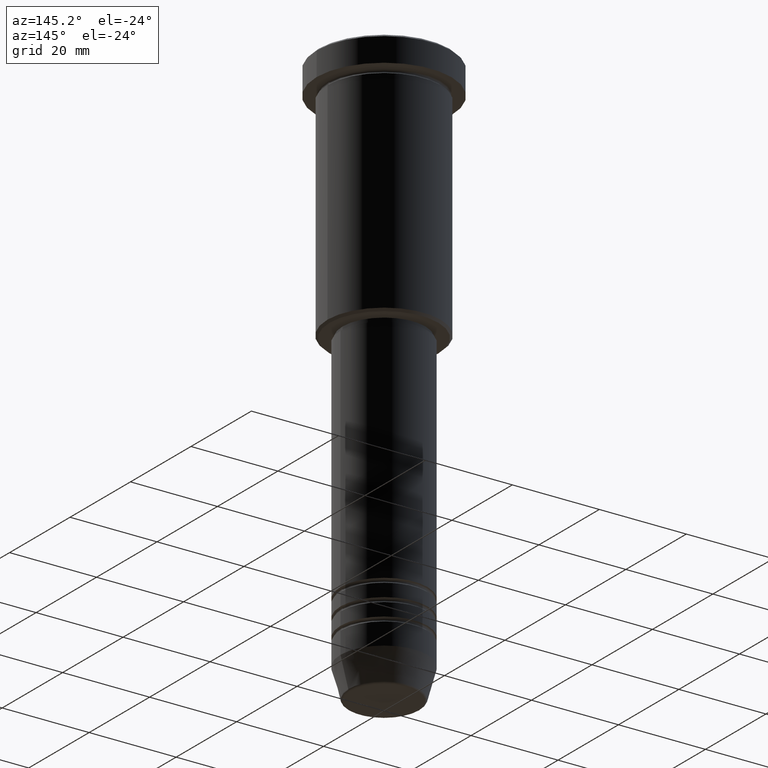
[diagram: clean part render]
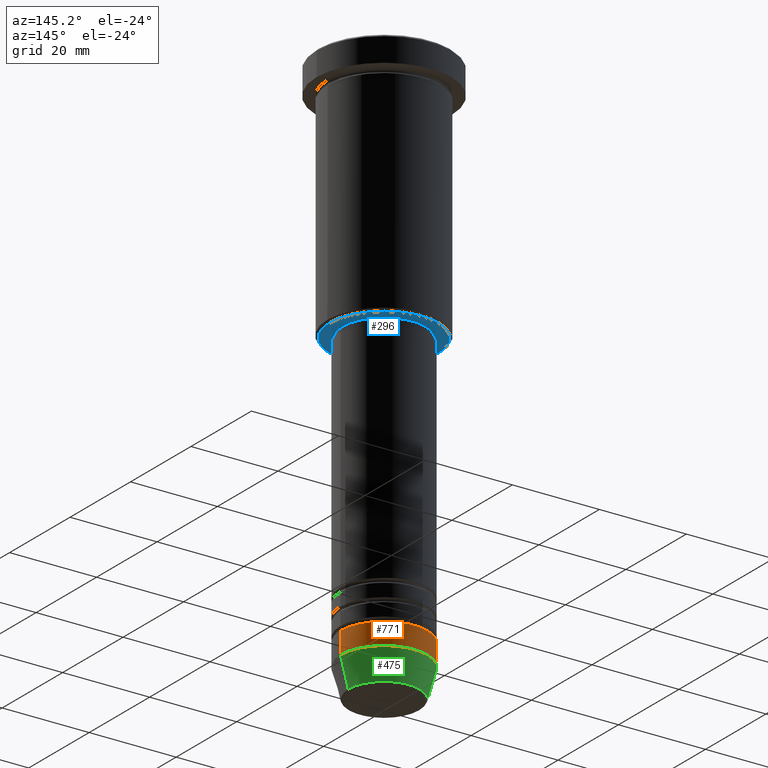
[diagram: same view with three faces highlighted in distinct colors, each labeled with its STEP entity id]
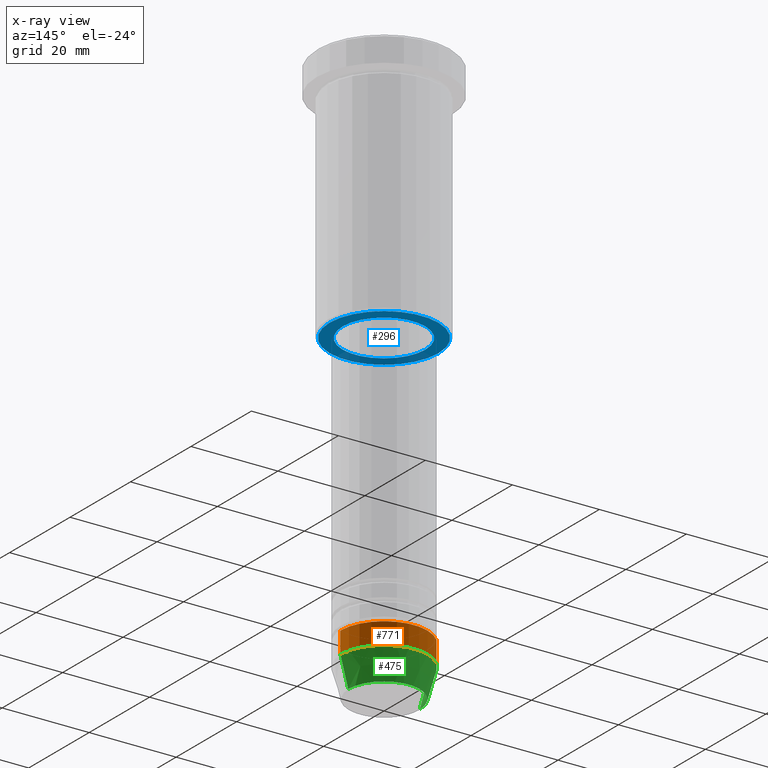
[diagram: x-ray of the same camera — body ghosted, the three highlighted faces saturated]
A machine part, auxiliary view with three faces highlighted in distinct colors.
The next image is the same camera in x-ray (body ghosted, the three faces saturated) — at least one of them is partly hidden behind the body in this view.
Their STEP definitions:

[orange] entity #771 — the highlighted cylindrical surface (partial cylindrical patch) has radius 10 mm, axis along (-0, -0, 1).
#29 = ORIENTED_EDGE ( 'NONE', *, *, #1176, .T. ) ;
#47 = CARTESIAN_POINT ( 'NONE',  ( -10.00000000000000000, 1.224646799147353256E-15, 0.000000000000000000 ) ) ;
#64 = CYLINDRICAL_SURFACE ( 'NONE', #567, 10.00000000000000000 ) ;
#74 = DIRECTION ( 'NONE',  ( 1.000000000000000000, 0.000000000000000000, 0.000000000000000000 ) ) ;
#88 = EDGE_LOOP ( 'NONE', ( #916, #29, #1086, #1070 ) ) ;
#150 = LINE ( 'NONE', #47, #1147 ) ;
#157 = EDGE_CURVE ( 'NONE', #504, #261, #374, .T. ) ;
#261 = VERTEX_POINT ( 'NONE', #1008 ) ;
#275 = CARTESIAN_POINT ( 'NONE',  ( 10.00000000000000000, 0.000000000000000000, 0.000000000000000000 ) ) ;
#350 = VERTEX_POINT ( 'NONE', #1115 ) ;
#363 = LINE ( 'NONE', #275, #973 ) ;
#374 = CIRCLE ( 'NONE', #1029, 10.00000000000000000 ) ;
#432 = DIRECTION ( 'NONE',  ( -0.000000000000000000, -0.000000000000000000, 1.000000000000000000 ) ) ;
#433 = DIRECTION ( 'NONE',  ( 1.000000000000000000, 0.000000000000000000, 0.000000000000000000 ) ) ;
#444 = CARTESIAN_POINT ( 'NONE',  ( 0.000000000000000000, 0.000000000000000000, 0.000000000000000000 ) ) ;
#504 = VERTEX_POINT ( 'NONE', #719 ) ;
#567 = AXIS2_PLACEMENT_3D ( 'NONE', #444, #904, #74 ) ;
#658 = VERTEX_POINT ( 'NONE', #988 ) ;
#672 = DIRECTION ( 'NONE',  ( 1.000000000000000000, 0.000000000000000000, 0.000000000000000000 ) ) ;
#719 = CARTESIAN_POINT ( 'NONE',  ( 10.00000000000000000, 0.000000000000000000, -124.0000000000000000 ) ) ;
#771 = ADVANCED_FACE ( 'NONE', ( #1167 ), #64, .T. ) ;
#782 = CIRCLE ( 'NONE', #1016, 10.00000000000000000 ) ;
#788 = EDGE_CURVE ( 'NONE', #504, #350, #363, .T. ) ;
#794 = CARTESIAN_POINT ( 'NONE',  ( 0.000000000000000000, 0.000000000000000000, -124.0000000000000000 ) ) ;
#799 = DIRECTION ( 'NONE',  ( -0.000000000000000000, -0.000000000000000000, 1.000000000000000000 ) ) ;
#886 = DIRECTION ( 'NONE',  ( -0.000000000000000000, -0.000000000000000000, 1.000000000000000000 ) ) ;
#904 = DIRECTION ( 'NONE',  ( -0.000000000000000000, -0.000000000000000000, 1.000000000000000000 ) ) ;
#916 = ORIENTED_EDGE ( 'NONE', *, *, #157, .T. ) ;
#920 = CARTESIAN_POINT ( 'NONE',  ( 0.000000000000000000, 0.000000000000000000, -119.0000000000000000 ) ) ;
#945 = DIRECTION ( 'NONE',  ( -0.000000000000000000, -0.000000000000000000, 1.000000000000000000 ) ) ;
#973 = VECTOR ( 'NONE', #799, 1000.000000000000000 ) ;
#988 = CARTESIAN_POINT ( 'NONE',  ( -10.00000000000000000, 1.224646799147353256E-15, -119.0000000000000000 ) ) ;
#1008 = CARTESIAN_POINT ( 'NONE',  ( -10.00000000000000000, 1.224646799147353256E-15, -124.0000000000000000 ) ) ;
#1016 = AXIS2_PLACEMENT_3D ( 'NONE', #920, #945, #672 ) ;
#1029 = AXIS2_PLACEMENT_3D ( 'NONE', #794, #886, #433 ) ;
#1070 = ORIENTED_EDGE ( 'NONE', *, *, #788, .F. ) ;
#1078 = EDGE_CURVE ( 'NONE', #350, #658, #782, .T. ) ;
#1086 = ORIENTED_EDGE ( 'NONE', *, *, #1078, .F. ) ;
#1115 = CARTESIAN_POINT ( 'NONE',  ( 10.00000000000000000, 0.000000000000000000, -119.0000000000000000 ) ) ;
#1147 = VECTOR ( 'NONE', #432, 1000.000000000000000 ) ;
#1167 = FACE_OUTER_BOUND ( 'NONE', #88, .T. ) ;
#1176 = EDGE_CURVE ( 'NONE', #261, #658, #150, .T. ) ;

[blue] entity #296 — the highlighted planar face has unit normal (0, 0, -1).
#71 = VERTEX_POINT ( 'NONE', #561 ) ;
#72 = ORIENTED_EDGE ( 'NONE', *, *, #516, .T. ) ;
#105 = DIRECTION ( 'NONE',  ( 0.000000000000000000, 0.000000000000000000, -1.000000000000000000 ) ) ;
#109 = VERTEX_POINT ( 'NONE', #1107 ) ;
#112 = DIRECTION ( 'NONE',  ( -1.000000000000000000, 0.000000000000000000, 0.000000000000000000 ) ) ;
#128 = DIRECTION ( 'NONE',  ( 0.000000000000000000, 0.000000000000000000, -1.000000000000000000 ) ) ;
#163 = CIRCLE ( 'NONE', #544, 9.500000000000001776 ) ;
#172 = ORIENTED_EDGE ( 'NONE', *, *, #730, .T. ) ;
#287 = FACE_BOUND ( 'NONE', #797, .T. ) ;
#291 = DIRECTION ( 'NONE',  ( 1.000000000000000000, 0.000000000000000000, 0.000000000000000000 ) ) ;
#296 = ADVANCED_FACE ( 'NONE', ( #1007, #287 ), #1100, .T. ) ;
#300 = AXIS2_PLACEMENT_3D ( 'NONE', #562, #105, #392 ) ;
#357 = CARTESIAN_POINT ( 'NONE',  ( 0.000000000000000000, 0.000000000000000000, -55.99999999999999289 ) ) ;
#364 = DIRECTION ( 'NONE',  ( 1.000000000000000000, 0.000000000000000000, 0.000000000000000000 ) ) ;
#392 = DIRECTION ( 'NONE',  ( -1.000000000000000000, 0.000000000000000000, -0.000000000000000000 ) ) ;
#461 = AXIS2_PLACEMENT_3D ( 'NONE', #677, #128, #112 ) ;
#514 = CARTESIAN_POINT ( 'NONE',  ( 9.500000000000001776, 0.000000000000000000, -55.99999999999999289 ) ) ;
#516 = EDGE_CURVE ( 'NONE', #71, #1157, #163, .T. ) ;
#537 = EDGE_CURVE ( 'NONE', #1157, #71, #1110, .T. ) ;
#544 = AXIS2_PLACEMENT_3D ( 'NONE', #1101, #650, #291 ) ;
#561 = CARTESIAN_POINT ( 'NONE',  ( -9.500000000000001776, 1.163414459189985682E-15, -55.99999999999999289 ) ) ;
#562 = CARTESIAN_POINT ( 'NONE',  ( 0.000000000000000000, 13.00000000000000000, -55.99999999999999289 ) ) ;
#620 = ORIENTED_EDGE ( 'NONE', *, *, #537, .T. ) ;
#633 = DIRECTION ( 'NONE',  ( -0.000000000000000000, -0.000000000000000000, 1.000000000000000000 ) ) ;
#638 = DIRECTION ( 'NONE',  ( 0.000000000000000000, 0.000000000000000000, -1.000000000000000000 ) ) ;
#650 = DIRECTION ( 'NONE',  ( -0.000000000000000000, -0.000000000000000000, 1.000000000000000000 ) ) ;
#677 = CARTESIAN_POINT ( 'NONE',  ( 0.000000000000000000, 0.000000000000000000, -55.99999999999999289 ) ) ;
#712 = EDGE_LOOP ( 'NONE', ( #172, #1103 ) ) ;
#720 = AXIS2_PLACEMENT_3D ( 'NONE', #357, #638, #814 ) ;
#730 = EDGE_CURVE ( 'NONE', #1138, #109, #802, .T. ) ;
#797 = EDGE_LOOP ( 'NONE', ( #620, #72 ) ) ;
#802 = CIRCLE ( 'NONE', #720, 12.49999999999996980 ) ;
#814 = DIRECTION ( 'NONE',  ( -1.000000000000000000, 0.000000000000000000, 0.000000000000000000 ) ) ;
#981 = EDGE_CURVE ( 'NONE', #109, #1138, #1127, .T. ) ;
#995 = AXIS2_PLACEMENT_3D ( 'NONE', #1173, #633, #364 ) ;
#1007 = FACE_OUTER_BOUND ( 'NONE', #712, .T. ) ;
#1100 = PLANE ( 'NONE',  #300 ) ;
#1101 = CARTESIAN_POINT ( 'NONE',  ( 0.000000000000000000, 0.000000000000000000, -55.99999999999999289 ) ) ;
#1103 = ORIENTED_EDGE ( 'NONE', *, *, #981, .T. ) ;
#1107 = CARTESIAN_POINT ( 'NONE',  ( -12.49999999999996980, 1.561424668912873336E-15, -55.99999999999999289 ) ) ;
#1110 = CIRCLE ( 'NONE', #995, 9.500000000000001776 ) ;
#1127 = CIRCLE ( 'NONE', #461, 12.49999999999996980 ) ;
#1132 = CARTESIAN_POINT ( 'NONE',  ( 12.49999999999996980, 0.000000000000000000, -55.99999999999999289 ) ) ;
#1138 = VERTEX_POINT ( 'NONE', #1132 ) ;
#1157 = VERTEX_POINT ( 'NONE', #514 ) ;
#1173 = CARTESIAN_POINT ( 'NONE',  ( 0.000000000000000000, 0.000000000000000000, -55.99999999999999289 ) ) ;

[green] entity #475 — the highlighted conical surface has half-angle 15 deg.
#44 = EDGE_CURVE ( 'NONE', #1108, #261, #262, .T. ) ;
#92 = CARTESIAN_POINT ( 'NONE',  ( 0.000000000000000000, 0.000000000000000000, -130.6294095225512706 ) ) ;
#157 = EDGE_CURVE ( 'NONE', #504, #261, #374, .T. ) ;
#176 = DIRECTION ( 'NONE',  ( -0.000000000000000000, -0.000000000000000000, 1.000000000000000000 ) ) ;
#201 = VECTOR ( 'NONE', #503, 1000.000000000000114 ) ;
#222 = AXIS2_PLACEMENT_3D ( 'NONE', #92, #176, #484 ) ;
#231 = LINE ( 'NONE', #268, #738 ) ;
#261 = VERTEX_POINT ( 'NONE', #1008 ) ;
#262 = LINE ( 'NONE', #947, #201 ) ;
#264 = CARTESIAN_POINT ( 'NONE',  ( 0.000000000000000000, 0.000000000000000000, -124.0000000000000000 ) ) ;
#268 = CARTESIAN_POINT ( 'NONE',  ( 10.00000000000000000, 0.000000000000000000, -124.0000000000000000 ) ) ;
#373 = DIRECTION ( 'NONE',  ( 1.000000000000000000, 0.000000000000000000, 0.000000000000000000 ) ) ;
#374 = CIRCLE ( 'NONE', #1029, 10.00000000000000000 ) ;
#433 = DIRECTION ( 'NONE',  ( 1.000000000000000000, 0.000000000000000000, 0.000000000000000000 ) ) ;
#475 = ADVANCED_FACE ( 'NONE', ( #713 ), #908, .T. ) ;
#484 = DIRECTION ( 'NONE',  ( 1.000000000000000000, 0.000000000000000000, 0.000000000000000000 ) ) ;
#503 = DIRECTION ( 'NONE',  ( -0.2588190451025210725, 3.169619151431769255E-17, 0.9659258262890680902 ) ) ;
#504 = VERTEX_POINT ( 'NONE', #719 ) ;
#535 = EDGE_CURVE ( 'NONE', #641, #1108, #954, .T. ) ;
#557 = DIRECTION ( 'NONE',  ( 0.2588190451025210725, 0.000000000000000000, 0.9659258262890680902 ) ) ;
#625 = DIRECTION ( 'NONE',  ( -0.000000000000000000, -0.000000000000000000, 1.000000000000000000 ) ) ;
#641 = VERTEX_POINT ( 'NONE', #1178 ) ;
#642 = AXIS2_PLACEMENT_3D ( 'NONE', #264, #625, #373 ) ;
#664 = ORIENTED_EDGE ( 'NONE', *, *, #535, .T. ) ;
#713 = FACE_OUTER_BOUND ( 'NONE', #1089, .T. ) ;
#719 = CARTESIAN_POINT ( 'NONE',  ( 10.00000000000000000, 0.000000000000000000, -124.0000000000000000 ) ) ;
#738 = VECTOR ( 'NONE', #557, 1000.000000000000114 ) ;
#794 = CARTESIAN_POINT ( 'NONE',  ( 0.000000000000000000, 0.000000000000000000, -124.0000000000000000 ) ) ;
#886 = DIRECTION ( 'NONE',  ( -0.000000000000000000, -0.000000000000000000, 1.000000000000000000 ) ) ;
#908 = CONICAL_SURFACE ( 'NONE', #642, 10.00000000000000000, 0.2617993877991497964 ) ;
#947 = CARTESIAN_POINT ( 'NONE',  ( -10.00000000000000000, 1.224646799147353256E-15, -124.0000000000000000 ) ) ;
#954 = CIRCLE ( 'NONE', #222, 8.223655072137185940 ) ;
#1004 = EDGE_CURVE ( 'NONE', #641, #504, #231, .T. ) ;
#1005 = ORIENTED_EDGE ( 'NONE', *, *, #157, .F. ) ;
#1008 = CARTESIAN_POINT ( 'NONE',  ( -10.00000000000000000, 1.224646799147353256E-15, -124.0000000000000000 ) ) ;
#1015 = CARTESIAN_POINT ( 'NONE',  ( -8.223655072137185940, 1.115877042642911659E-15, -130.6294095225512706 ) ) ;
#1029 = AXIS2_PLACEMENT_3D ( 'NONE', #794, #886, #433 ) ;
#1079 = ORIENTED_EDGE ( 'NONE', *, *, #44, .T. ) ;
#1089 = EDGE_LOOP ( 'NONE', ( #664, #1079, #1005, #1166 ) ) ;
#1108 = VERTEX_POINT ( 'NONE', #1015 ) ;
#1166 = ORIENTED_EDGE ( 'NONE', *, *, #1004, .F. ) ;
#1178 = CARTESIAN_POINT ( 'NONE',  ( 8.223655072137185940, 0.000000000000000000, -130.6294095225512706 ) ) ;